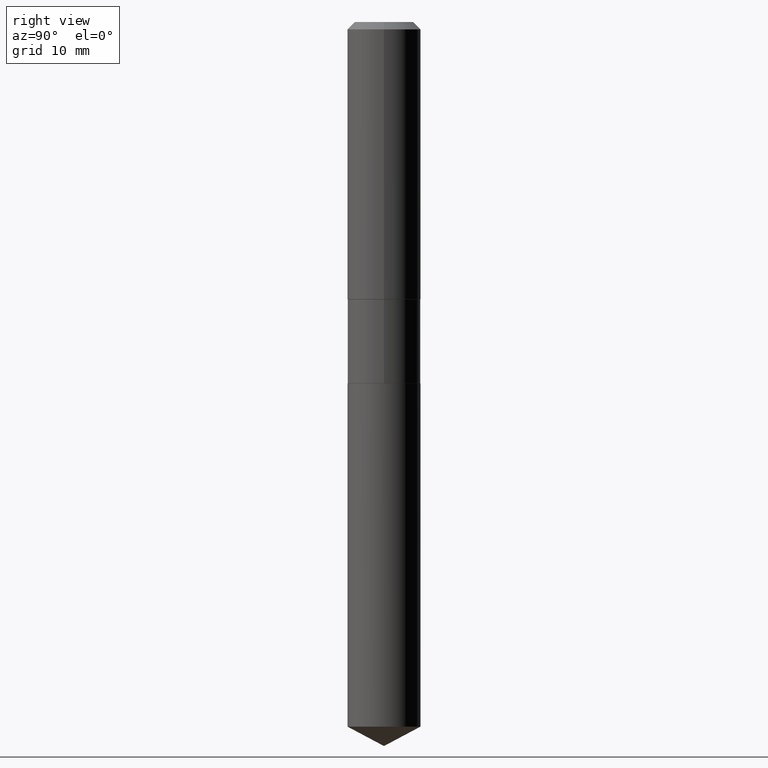
[diagram: clean part render]
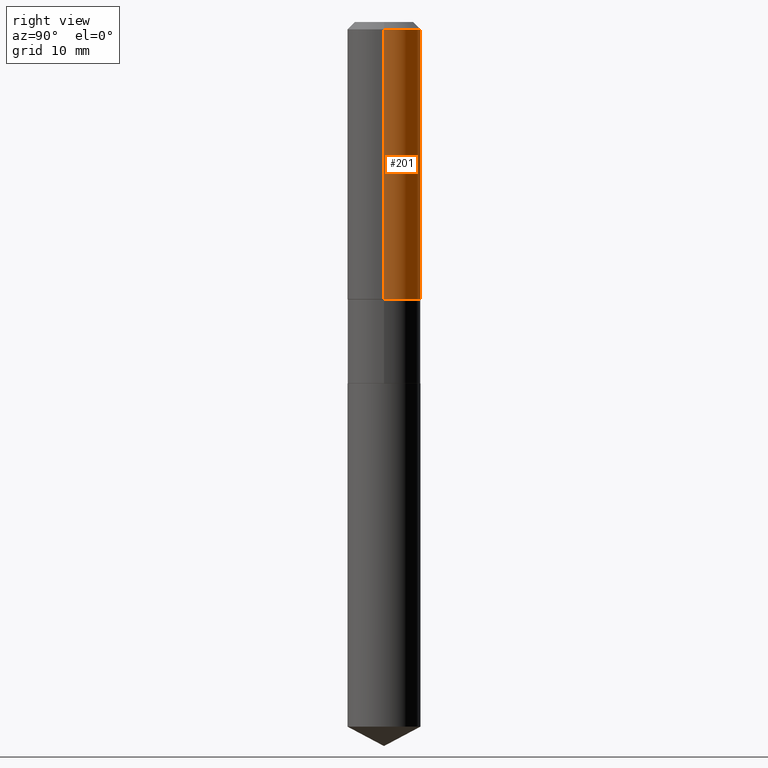
[diagram: same view with one face highlighted and labeled with its STEP entity id]
A machine part, right view. The second image highlights one B-rep face of the part: STEP entity #201.
In plain terms, the highlighted cylindrical surface (partial cylindrical patch) has radius 5.9995 mm, axis along (-0, 0, 1).
Its self-contained STEP definition (entity closure, byte-faithful):
#16 = CARTESIAN_POINT ( 'NONE',  ( -0.2362000000000001043, 1.678301941865357380E-15, -1.161852468318209317E-29 ) ) ;
#17 = EDGE_CURVE ( 'NONE', #152, #365, #393, .T. ) ;
#22 = DIRECTION ( 'NONE',  ( 1.000000000000000000, -6.982962677686266711E-15, 0.000000000000000000 ) ) ;
#47 = VECTOR ( 'NONE', #442, 39.37007874015748143 ) ;
#59 = DIRECTION ( 'NONE',  ( -2.445468806185136597E-29, 3.491481338843145583E-15, 1.000000000000000000 ) ) ;
#63 = ORIENTED_EDGE ( 'NONE', *, *, #479, .F. ) ;
#64 = DIRECTION ( 'NONE',  ( -2.445468806185136597E-29, 3.491481338843145583E-15, 1.000000000000000000 ) ) ;
#83 = ORIENTED_EDGE ( 'NONE', *, *, #17, .F. ) ;
#140 = AXIS2_PLACEMENT_3D ( 'NONE', #213, #59, #22 ) ;
#152 = VERTEX_POINT ( 'NONE', #466 ) ;
#157 = AXIS2_PLACEMENT_3D ( 'NONE', #245, #64, #481 ) ;
#162 = EDGE_LOOP ( 'NONE', ( #187, #373, #83, #63 ) ) ;
#173 = DIRECTION ( 'NONE',  ( -2.445468806185136597E-29, 3.491481338843145583E-15, 1.000000000000000000 ) ) ;
#184 = CARTESIAN_POINT ( 'NONE',  ( 0.2362000000000002153, -7.860371938137568836E-15, -1.778899999999999704 ) ) ;
#187 = ORIENTED_EDGE ( 'NONE', *, *, #250, .T. ) ;
#201 = ADVANCED_FACE ( 'NONE', ( #358 ), #257, .T. ) ;
#213 = CARTESIAN_POINT ( 'NONE',  ( 4.350244459322738732E-29, -6.210996153668070733E-15, -1.778899999999999704 ) ) ;
#218 = EDGE_CURVE ( 'NONE', #490, #365, #370, .T. ) ;
#239 = VECTOR ( 'NONE', #486, 39.37007874015748143 ) ;
#245 = CARTESIAN_POINT ( 'NONE',  ( 0.000000000000000000, 0.000000000000000000, 0.000000000000000000 ) ) ;
#250 = EDGE_CURVE ( 'NONE', #291, #490, #430, .T. ) ;
#257 = CYLINDRICAL_SURFACE ( 'NONE', #157, 0.2362000000000001043 ) ;
#263 = CARTESIAN_POINT ( 'NONE',  ( -0.2362000000000002153, -4.532694211802711972E-15, -1.778899999999999704 ) ) ;
#276 = AXIS2_PLACEMENT_3D ( 'NONE', #414, #173, #359 ) ;
#291 = VERTEX_POINT ( 'NONE', #184 ) ;
#292 = CARTESIAN_POINT ( 'NONE',  ( 0.2362000000000001043, -1.649375784469496920E-15, 1.151752954443000508E-29 ) ) ;
#358 = FACE_OUTER_BOUND ( 'NONE', #162, .T. ) ;
#359 = DIRECTION ( 'NONE',  ( 1.000000000000000000, -6.982962677686266711E-15, 0.000000000000000000 ) ) ;
#365 = VERTEX_POINT ( 'NONE', #489 ) ;
#370 = LINE ( 'NONE', #16, #47 ) ;
#373 = ORIENTED_EDGE ( 'NONE', *, *, #218, .T. ) ;
#393 = CIRCLE ( 'NONE', #276, 0.2361999999999999933 ) ;
#414 = CARTESIAN_POINT ( 'NONE',  ( 1.155239464041865331E-30, -1.649375784469511612E-16, -0.04724000000000027483 ) ) ;
#430 = CIRCLE ( 'NONE', #140, 0.2362000000000002153 ) ;
#442 = DIRECTION ( 'NONE',  ( -2.445468806185136877E-29, 3.491481338843145188E-15, 1.000000000000000000 ) ) ;
#451 = LINE ( 'NONE', #292, #239 ) ;
#466 = CARTESIAN_POINT ( 'NONE',  ( 0.2361999999999999933, -1.814313362916447440E-15, -0.04724000000000027483 ) ) ;
#479 = EDGE_CURVE ( 'NONE', #291, #152, #451, .T. ) ;
#481 = DIRECTION ( 'NONE',  ( 1.000000000000000000, -6.982962677686266711E-15, 4.876176775795935793E-29 ) ) ;
#486 = DIRECTION ( 'NONE',  ( -2.445468806185136877E-29, 3.491481338843145188E-15, 1.000000000000000000 ) ) ;
#489 = CARTESIAN_POINT ( 'NONE',  ( -0.2361999999999999933, -1.509664924192153443E-15, -0.04724000000000027483 ) ) ;
#490 = VERTEX_POINT ( 'NONE', #263 ) ;